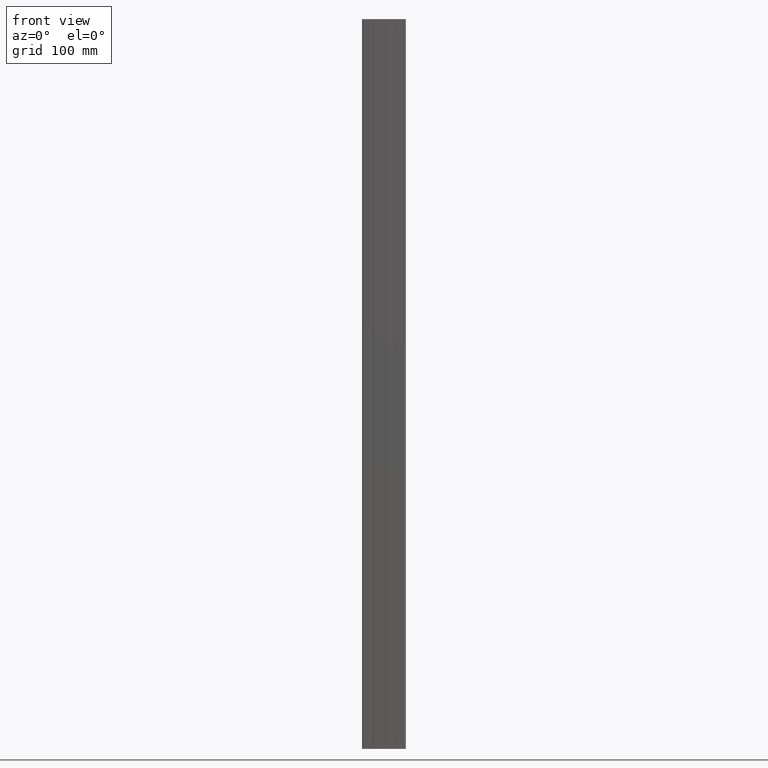
[diagram: clean part render]
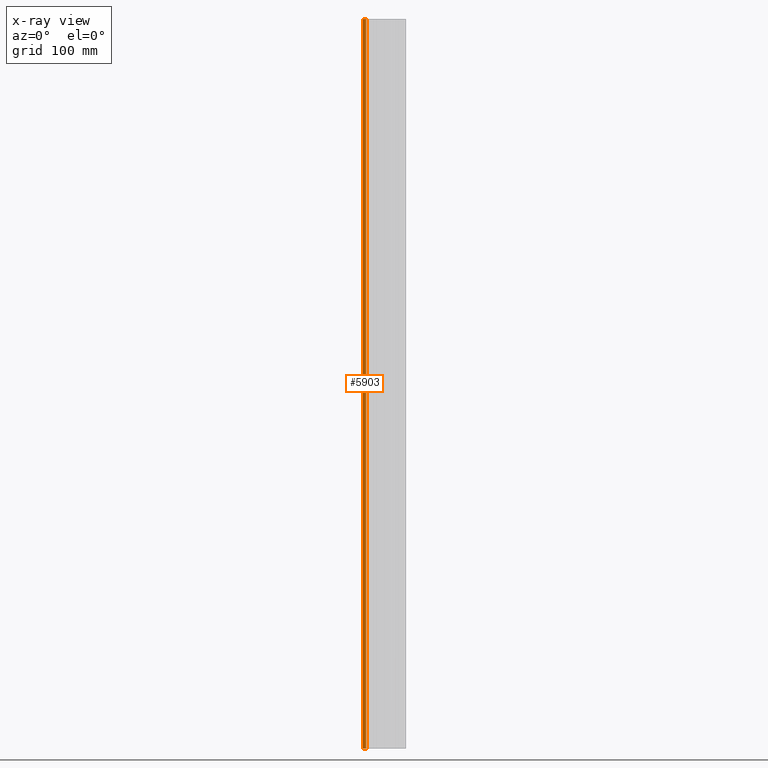
[diagram: x-ray — body ghosted, one internal face saturated and labeled with its STEP entity id]
A machine part, front view, then the same camera in x-ray: the body is ghosted and one INTERNAL B-rep face — a face not visible from any outside direction — is saturated and labeled: STEP entity #5903.
In plain terms, the highlighted cylindrical surface (edge-blend (fillet) strip) has radius 2.25 mm, axis along (0, 0, 1).
Its self-contained STEP definition (entity closure, byte-faithful):
#14 = DIRECTION ( 'NONE',  ( 1.000000000000000000, 0.0000000000000000000, 0.0000000000000000000 ) ) ;
#275 = AXIS2_PLACEMENT_3D ( 'NONE', #8876, #785, #2938 ) ;
#426 = AXIS2_PLACEMENT_3D ( 'NONE', #8249, #6031, #9034 ) ;
#785 = DIRECTION ( 'NONE',  ( 0.0000000000000000000, 0.0000000000000000000, 1.000000000000000000 ) ) ;
#1501 = AXIS2_PLACEMENT_3D ( 'NONE', #6730, #8254, #14 ) ;
#1539 = CARTESIAN_POINT ( 'NONE',  ( -9.249999999999998224, -11.50000000000000711, -1000.000000000000000 ) ) ;
#1724 = LINE ( 'NONE', #3336, #2282 ) ;
#2282 = VECTOR ( 'NONE', #7807, 1000.000000000000000 ) ;
#2938 = DIRECTION ( 'NONE',  ( 1.000000000000000000, 0.0000000000000000000, 0.0000000000000000000 ) ) ;
#3075 = VECTOR ( 'NONE', #6683, 1000.000000000000000 ) ;
#3250 = CARTESIAN_POINT ( 'NONE',  ( -9.249999999999998224, -11.50000000000000711, 0.0000000000000000000 ) ) ;
#3312 = VERTEX_POINT ( 'NONE', #3250 ) ;
#3336 = CARTESIAN_POINT ( 'NONE',  ( -13.75000000000000178, -11.50000000000000711, -1000.000000000000000 ) ) ;
#3476 = ORIENTED_EDGE ( 'NONE', *, *, #8839, .F. ) ;
#3693 = CIRCLE ( 'NONE', #1501, 2.250000000000001776 ) ;
#3811 = EDGE_LOOP ( 'NONE', ( #6888, #8554, #5222, #3476 ) ) ;
#4955 = CIRCLE ( 'NONE', #426, 2.250000000000001776 ) ;
#5015 = VERTEX_POINT ( 'NONE', #9640 ) ;
#5192 = CYLINDRICAL_SURFACE ( 'NONE', #275, 2.250000000000001776 ) ;
#5222 = ORIENTED_EDGE ( 'NONE', *, *, #7934, .T. ) ;
#5310 = LINE ( 'NONE', #1539, #3075 ) ;
#5451 = CARTESIAN_POINT ( 'NONE',  ( -9.249999999999998224, -11.50000000000000711, -1000.000000000000000 ) ) ;
#5486 = EDGE_CURVE ( 'NONE', #6289, #8048, #4955, .T. ) ;
#5870 = FACE_OUTER_BOUND ( 'NONE', #3811, .T. ) ;
#5903 = ADVANCED_FACE ( 'NONE', ( #5870 ), #5192, .F. ) ;
#6031 = DIRECTION ( 'NONE',  ( 0.0000000000000000000, -0.0000000000000000000, 1.000000000000000000 ) ) ;
#6289 = VERTEX_POINT ( 'NONE', #8950 ) ;
#6683 = DIRECTION ( 'NONE',  ( 0.0000000000000000000, 0.0000000000000000000, 1.000000000000000000 ) ) ;
#6730 = CARTESIAN_POINT ( 'NONE',  ( -11.50000000000000000, -11.50000000000000711, 0.0000000000000000000 ) ) ;
#6888 = ORIENTED_EDGE ( 'NONE', *, *, #5486, .F. ) ;
#7807 = DIRECTION ( 'NONE',  ( 0.0000000000000000000, 0.0000000000000000000, 1.000000000000000000 ) ) ;
#7934 = EDGE_CURVE ( 'NONE', #5015, #3312, #3693, .T. ) ;
#8016 = EDGE_CURVE ( 'NONE', #6289, #5015, #1724, .T. ) ;
#8048 = VERTEX_POINT ( 'NONE', #5451 ) ;
#8249 = CARTESIAN_POINT ( 'NONE',  ( -11.50000000000000000, -11.50000000000000711, -1000.000000000000000 ) ) ;
#8254 = DIRECTION ( 'NONE',  ( 0.0000000000000000000, -0.0000000000000000000, 1.000000000000000000 ) ) ;
#8554 = ORIENTED_EDGE ( 'NONE', *, *, #8016, .T. ) ;
#8839 = EDGE_CURVE ( 'NONE', #8048, #3312, #5310, .T. ) ;
#8876 = CARTESIAN_POINT ( 'NONE',  ( -11.50000000000000000, -11.50000000000000711, -1000.000000000000000 ) ) ;
#8950 = CARTESIAN_POINT ( 'NONE',  ( -13.75000000000000178, -11.50000000000000711, -1000.000000000000000 ) ) ;
#9034 = DIRECTION ( 'NONE',  ( 1.000000000000000000, 0.0000000000000000000, 0.0000000000000000000 ) ) ;
#9640 = CARTESIAN_POINT ( 'NONE',  ( -13.75000000000000178, -11.50000000000000711, 0.0000000000000000000 ) ) ;